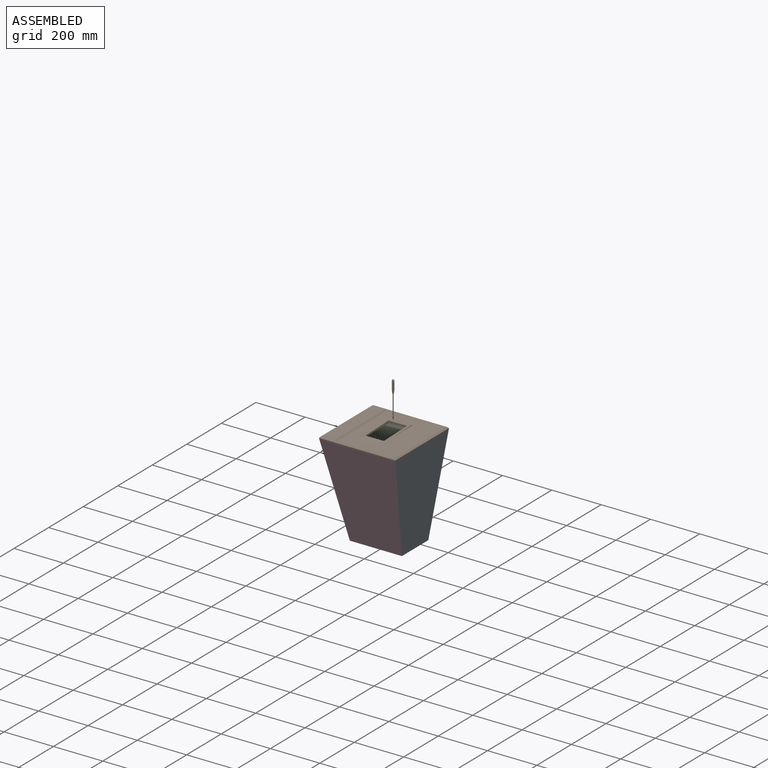
[diagram: assembled view]
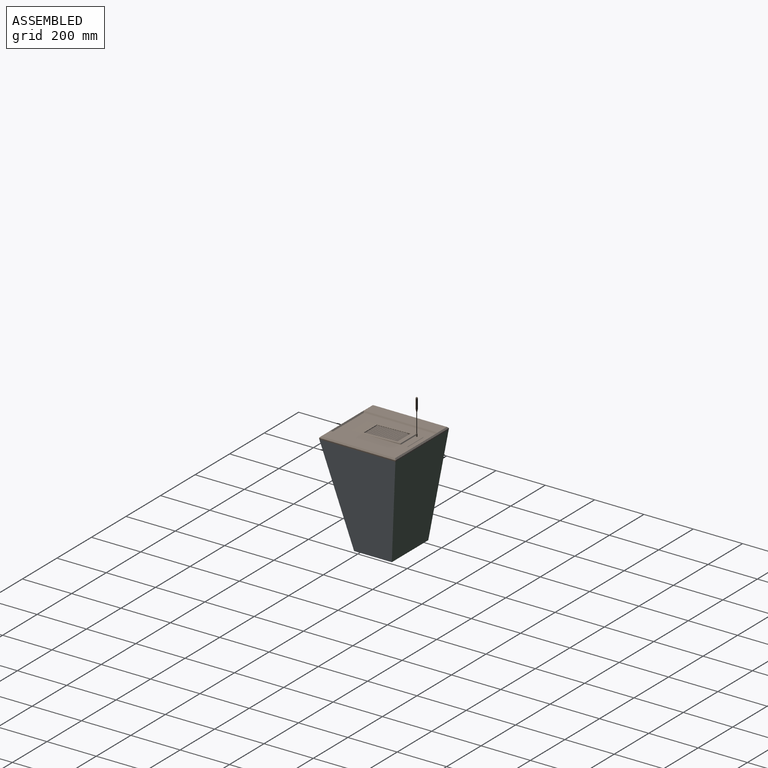
[diagram: assembled view, second angle]
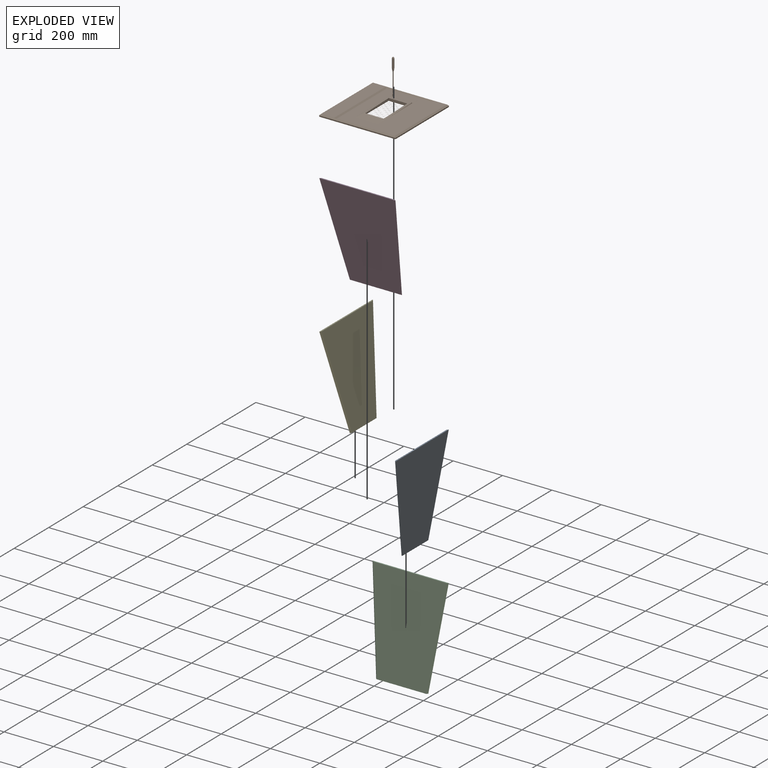
[diagram: exploded view]
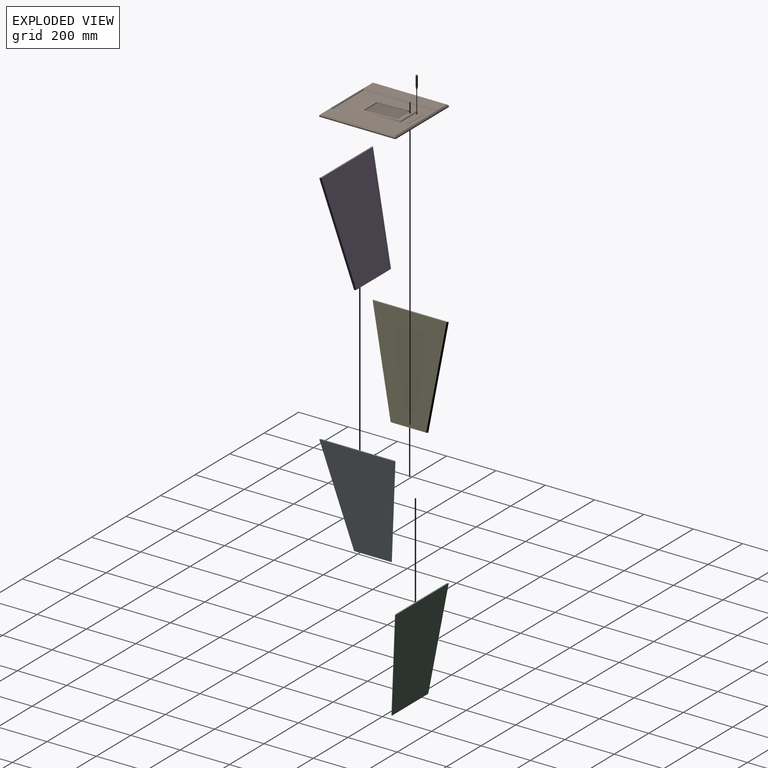
[diagram: exploded view, second angle]
ASSEMBLY  parts=5 mates=4
PART A: 6 faces, bbox 53.8x308.8x400 mm
  f0: plane 400x298.33mm, normal (-0.99,0,0.12), area 88794.6mm2, adj f2,f3,f4,f5
  f1: plane 400x308.78mm, normal (0.99,0,-0.12), area 93004.1mm2, adj f2,f3,f4,f5
  f2: plane 308.78x5.04mm, normal (0,0,1), area 1529mm2, adj f0,f1,f4,f5
  f3: plane 152.82x5.04mm, normal (0,0,-1), area 743.5mm2, adj f0,f1,f4,f5
  f4: plane 400x53.89mm, normal (-0.71,0.7,0), area 2870.2mm2, adj f0,f1,f2,f3
  f5: plane 400x112.52mm, normal (-0.72,-0.68,-0.09), area 2948.4mm2, adj f0,f1,f2,f3
PART B: 142 faces, bbox 310x310x150 mm
  f0: plane 20.08x6.63mm, normal (-1,0,0), area 58.6mm2, adj f30,f48,f94,f97
  f1: plane 14.5x6.37mm, normal (-1,0,0), area 57.1mm2, adj f30,f44,f48,f96
  f2: plane 20.08x6.63mm, normal (1,0,0), area 58.6mm2, adj f30,f48,f94,f97
  f3: plane 20.53x6.9mm, normal (-1,0,0), area 61mm2, adj f30,f48,f92,f95
  f4: plane 20.53x6.9mm, normal (1,0,0), area 61mm2, adj f30,f48,f92,f95
  f5: plane 20.99x7.16mm, normal (-1,0,0), area 63.4mm2, adj f30,f48,f90,f93
  f6: plane 20.99x7.16mm, normal (1,0,0), area 63.4mm2, adj f30,f48,f90,f93
  f7: plane 21.44x7.42mm, normal (-1,0,0), area 65.7mm2, adj f30,f48,f88,f91
  f8: plane 21.44x7.42mm, normal (1,0,0), area 65.7mm2, adj f30,f48,f88,f91
  f9: plane 21.9x7.68mm, normal (-1,0,0), area 68.1mm2, adj f30,f48,f86,f89
  f10: plane 21.9x7.68mm, normal (1,0,0), area 68.1mm2, adj f30,f48,f86,f89
  f11: plane 22.35x7.94mm, normal (-1,0,0), area 70.4mm2, adj f30,f48,f84,f87
  f12: plane 22.35x7.94mm, normal (1,0,0), area 70.4mm2, adj f30,f48,f84,f87
  f13: plane 22.8x8.21mm, normal (-1,0,0), area 72.8mm2, adj f30,f48,f82,f85
  f14: plane 22.8x8.21mm, normal (1,0,0), area 72.8mm2, adj f30,f48,f82,f85
  f15: plane 23.26x8.47mm, normal (-1,0,0), area 75.1mm2, adj f30,f48,f80,f83
  f16: plane 23.26x8.47mm, normal (1,0,0), area 75.1mm2, adj f30,f48,f80,f83
  f17: plane 23.71x8.73mm, normal (-1,0,0), area 77.5mm2, adj f30,f48,f78,f81
  f18: plane 23.71x8.73mm, normal (1,0,0), area 77.5mm2, adj f30,f48,f78,f81
  f19: plane 24.16x8.99mm, normal (-1,0,0), area 79.9mm2, adj f30,f48,f76,f79
  f20: plane 24.16x8.99mm, normal (1,0,0), area 79.9mm2, adj f30,f48,f76,f79
  f21: plane 24.62x9.25mm, normal (-1,0,0), area 82.2mm2, adj f30,f48,f74,f77
  f22: plane 24.62x9.25mm, normal (1,0,0), area 82.2mm2, adj f30,f48,f74,f77
  f23: plane 25.07x9.52mm, normal (-1,0,0), area 84.6mm2, adj f30,f48,f72,f75
  f24: plane 25.07x9.52mm, normal (1,0,0), area 84.6mm2, adj f30,f48,f72,f75
  f25: plane 16.73x10mm, normal (-1,0,0), area 84.6mm2, adj f30,f46,f48,f71,f73
  f26: plane 16.73x10mm, normal (1,0,0), area 84.6mm2, adj f30,f46,f48,f71,f73
  f27: plane 291.22x184.02mm, normal (0,0,1), area 31529.6mm2, adj f39,f40,f41,f42,f48,f49,f50,f51
  f28: plane 300x53mm, normal (0,0,1), area 15900mm2, adj f35,f36,f37,f40
  f29: plane 300x53mm, normal (0,0,1), area 15900mm2, adj f36,f37,f38,f41
  f30: plane 308.78x308.78mm, normal (0,0,-1), area 86142.9mm2, adj f0,f1,f2,f3,f4,f5,f6,f7
  f31: plane 310x5mm, normal (0.99,0,-0.12), area 1558.4mm2, adj f30,f33,f34,f38
  f32: plane 310x5mm, normal (-0.99,0,-0.12), area 1558.4mm2, adj f30,f33,f34,f35
  f33: plane 310x5mm, normal (0,0.99,-0.12), area 1558.4mm2, adj f30,f31,f32,f37
  f34: plane 310x5mm, normal (0,-0.99,-0.12), area 1558.4mm2, adj f30,f31,f32,f36
  f35: plane 310x5mm, normal (-0.71,0,0.71), area 2156.7mm2, adj f28,f32,f36,f37
  f36: plane 310x5mm, normal (0,-0.71,0.71), area 2074.5mm2, adj f28,f29,f34,f35,f38,f40,f41,f42
  f37: plane 310x5mm, normal (0,0.71,0.71), area 2074.5mm2, adj f28,f29,f33,f35,f38,f39,f40,f41
  f38: plane 310x5mm, normal (0.71,0,0.71), area 2156.7mm2, adj f29,f31,f36,f37
  f39: plane 193.4x4.7mm, normal (0,-0.71,0.71), area 1254.3mm2, adj f27,f37,f40,f41
  f40: plane 300.6x5mm, normal (0.71,0,0.71), area 2094.2mm2, adj f27,f28,f36,f37,f39,f42
  f41: plane 300.6x5mm, normal (-0.71,0,0.71), area 2094.2mm2, adj f27,f29,f36,f37,f39,f42
  f42: plane 193.4x4.7mm, normal (0,0.71,0.71), area 1254.3mm2, adj f27,f36,f40,f41
  f43: plane 90.73x24.79mm, normal (0,0,1), area 2229.8mm2, adj f54,f57,f60,f61,f63,f64,f98,f99
  f44: plane 75x6.28mm, normal (0,1,0), area 470.7mm2, adj f1,f30,f45,f48
  f45: plane 14.5x6.37mm, normal (1,0,0), area 57.1mm2, adj f30,f44,f48,f96
  f46: plane 75x10mm, normal (0,-1,0), area 750mm2, adj f25,f26,f30,f71
  f47: plane 85.71x16.08mm, normal (0,0,1), area 1370.6mm2, adj f62,f69,f70,f71
  f48: plane 182.17x95.77mm, normal (0,-0.03,1), area 6620.8mm2, adj f0,f1,f2,f3,f4,f5,f6,f7
  f49: cylinder r=3mm len=229.66mm, axis (0,1,0), area 631.4mm2, adj f27,f50,f55,f57,f63
  f50: bspline ~226.35x6.21mm, area 532.4mm2, adj f27,f48,f49,f65,f69
  f51: cylinder r=3mm len=229.66mm, axis (0,-1,0), area 631.4mm2, adj f27,f52,f58,f60,f64
  f52: bspline ~226.35x6.21mm, area 532.4mm2, adj f27,f48,f51,f66,f70
  f53: cylinder r=1mm len=96mm, axis (-1,0,0), area 97.8mm2, adj f27,f54,f55,f58
  f54: cylinder r=1mm len=90.71mm, axis (-1,0,0), area 95mm2, adj f43,f53,f56,f59
  f55: bspline ~2.65x1.73mm, area 1mm2, adj f49,f53,f56
  f56: sphere r=1mm, area 0.5mm2, adj f54,f55,f57
  f57: cylinder r=1mm len=24.22mm, axis (0,1,0), area 17.1mm2, adj f43,f49,f56,f63
  f58: bspline ~2.65x1.73mm, area 1mm2, adj f51,f53,f59
  f59: sphere r=1mm, area 0.5mm2, adj f54,f58,f60
  f60: cylinder r=1mm len=24.22mm, axis (0,-1,0), area 17.1mm2, adj f43,f51,f59,f64
  f61: cylinder r=3mm len=90mm, axis (-1,0,0), area 361.1mm2, adj f43,f62,f63,f64,f65,f66
  f62: cylinder r=2mm len=85.71mm, axis (-1,0,0), area 234.8mm2, adj f47,f61,f67,f68
  f63: bspline ~6.88x3.21mm, area 10.7mm2, adj f43,f49,f57,f61,f65
  f64: bspline ~6.88x3.21mm, area 10.7mm2, adj f43,f51,f60,f61,f66
  f65: bspline ~2.77x2.37mm, area 3mm2, adj f50,f61,f63,f67
  f66: bspline ~2.77x2.37mm, area 3mm2, adj f52,f61,f64,f68
  f67: sphere r=2mm, area 4.2mm2, adj f62,f65,f69
  f68: sphere r=2mm, area 3.7mm2, adj f62,f66,f70
  f69: bspline ~17.46x2.52mm, area 20.7mm2, adj f47,f50,f67,f71
  f70: bspline ~17.46x2.5mm, area 20.7mm2, adj f47,f52,f68,f71
  f71: cylinder r=2mm len=84.17mm, axis (-1,0,0), area 2.6mm2, adj f25,f26,f46,f47,f48,f69,f70
  f72: plane 75x16.48mm, normal (0,-0.5,-0.87), area 1427.2mm2, adj f23,f24,f30,f48
  f73: plane 75x16.53mm, normal (0,0.5,0.87), area 1431.2mm2, adj f25,f26,f30,f48
  f74: plane 75x16.03mm, normal (0,-0.5,-0.87), area 1387.9mm2, adj f21,f22,f30,f48
  f75: plane 75x16.07mm, normal (0,0.5,0.87), area 1391.9mm2, adj f23,f24,f30,f48
  f76: plane 75x15.57mm, normal (0,-0.5,-0.87), area 1348.6mm2, adj f19,f20,f30,f48
  f77: plane 75x15.62mm, normal (0,0.5,0.87), area 1352.6mm2, adj f21,f22,f30,f48
  f78: plane 75x15.12mm, normal (0,-0.5,-0.87), area 1309.3mm2, adj f17,f18,f30,f48
  f79: plane 75x15.16mm, normal (0,0.5,0.87), area 1313.3mm2, adj f19,f20,f30,f48
  f80: plane 75x14.67mm, normal (0,-0.5,-0.87), area 1270mm2, adj f15,f16,f30,f48
  f81: plane 75x14.71mm, normal (0,0.5,0.87), area 1274mm2, adj f17,f18,f30,f48
  f82: plane 75x14.21mm, normal (0,-0.5,-0.87), area 1230.7mm2, adj f13,f14,f30,f48
  f83: plane 75x14.26mm, normal (0,0.5,0.87), area 1234.7mm2, adj f15,f16,f30,f48
  f84: plane 75x13.76mm, normal (0,-0.5,-0.87), area 1191.4mm2, adj f11,f12,f30,f48
  f85: plane 75x13.8mm, normal (0,0.5,0.87), area 1195.4mm2, adj f13,f14,f30,f48
  f86: plane 75x13.3mm, normal (0,-0.5,-0.87), area 1152.2mm2, adj f9,f10,f30,f48
  f87: plane 75x13.35mm, normal (0,0.5,0.87), area 1156.1mm2, adj f11,f12,f30,f48
  f88: plane 75x12.85mm, normal (0,-0.5,-0.87), area 1112.9mm2, adj f7,f8,f30,f48
  f89: plane 75x12.9mm, normal (0,0.5,0.87), area 1116.8mm2, adj f9,f10,f30,f48
  f90: plane 75x12.4mm, normal (0,-0.5,-0.87), area 1073.6mm2, adj f5,f6,f30,f48
  f91: plane 75x12.44mm, normal (0,0.5,0.87), area 1077.5mm2, adj f7,f8,f30,f48
  f92: plane 75x11.94mm, normal (0,-0.5,-0.87), area 1034.3mm2, adj f3,f4,f30,f48
  f93: plane 75x11.99mm, normal (0,0.5,0.87), area 1038.2mm2, adj f5,f6,f30,f48
  f94: plane 75x11.49mm, normal (0,-0.5,-0.87), area 995mm2, adj f0,f2,f30,f48
  f95: plane 75x11.53mm, normal (0,0.5,0.87), area 998.9mm2, adj f3,f4,f30,f48
  f96: plane 75x11.04mm, normal (0,-0.5,-0.87), area 955.7mm2, adj f1,f30,f45,f48
  f97: plane 75x11.08mm, normal (0,0.5,0.87), area 959.6mm2, adj f0,f2,f30,f48
  f98: plane 10x1.5mm, normal (0,1,0), area 15mm2, adj f43,f102,f105,f118
  f99: plane 10.34x3mm, normal (-1,0,0), area 30.4mm2, adj f43,f102,f103,f115,f117,f119
  f100: plane 10x1.5mm, normal (0,-1,0), area 15mm2, adj f43,f103,f104,f111
  f101: plane 10.34x3mm, normal (1,0,0), area 30.4mm2, adj f43,f104,f105,f110,f112,f114
  f102: cylinder r=1mm len=10mm, axis (0,0,-1), area 15.7mm2, adj f43,f98,f99,f120
  f103: cylinder r=1mm len=10mm, axis (0,0,1), area 15.7mm2, adj f43,f99,f100,f113
  f104: cylinder r=1mm len=10mm, axis (0,0,-1), area 15.7mm2, adj f43,f100,f101,f109
  f105: cylinder r=1mm len=10mm, axis (0,0,1), area 15.7mm2, adj f43,f98,f101,f116
  f106: cylinder r=1.5mm len=76.01mm, axis (0,0,-1), area 706.7mm2, adj f123,f126,f127,f128,f129,f130,f132,f133
  f107: cylinder r=4mm len=34.17mm, axis (0,0,-1), area 858.9mm2, adj f124,f125
  f108: plane 4.56x4.56mm, normal (0,0,1), area 16.3mm2, adj f122
  f109: sphere r=1mm, area 0.7mm2, adj f104,f110,f111,f140
  f110: cylinder r=1mm len=0.37mm, axis (0,-1,0), area 0.1mm2, adj f101,f109,f112,f138
  f111: cylinder r=1mm len=1.5mm, axis (-1,0,0), area 0.9mm2, adj f100,f109,f113,f141
  f112: bspline ~3.06x1.11mm, area 0.9mm2, adj f101,f110,f114,f132,f134,f136
  f113: sphere r=1mm, area 0.7mm2, adj f103,f111,f115,f139
  f114: cylinder r=1mm len=0.37mm, axis (0,-1,0), area 0.1mm2, adj f101,f112,f116,f130
  f115: cylinder r=1mm len=0.37mm, axis (0,1,0), area 0.1mm2, adj f99,f113,f117,f137
  f116: sphere r=1mm, area 0.7mm2, adj f105,f114,f118,f128
  f117: bspline ~3.06x1.11mm, area 0.9mm2, adj f99,f115,f119,f131,f133,f135
  f118: cylinder r=1mm len=1.5mm, axis (1,0,0), area 0.9mm2, adj f98,f116,f120,f126
  f119: cylinder r=1mm len=0.37mm, axis (0,1,0), area 0.1mm2, adj f99,f117,f120,f129
  f120: sphere r=1mm, area 0.7mm2, adj f102,f118,f119,f127
  f121: cone r=2mm half-angle=18.4deg, axis (0,0,-1), area 17.3mm2, adj f122,f125
  f122: torus R=2.28mm, axis (0,0,1), area 22.2mm2, adj f108,f121
  f123: torus R=21.5mm, axis (0,0,-1), area 64.7mm2, adj f106,f124
  f124: revolved ~11.43x8mm, area 250.7mm2, adj f107,f123
  f125: revolved ~8x8mm, area 77.4mm2, adj f107,f121
  f126: bspline ~4.08x3.21mm, area 2.7mm2, adj f106,f118,f127,f128
  f127: bspline ~3.3x2.18mm, area 4.6mm2, adj f106,f120,f126,f129
  f128: bspline ~3.3x2.18mm, area 4.6mm2, adj f106,f116,f126,f130
  f129: bspline ~2.48x2.15mm, area 0.2mm2, adj f106,f119,f127,f131
  f130: bspline ~2.48x2.15mm, area 0.2mm2, adj f106,f114,f128,f132
  f131: bspline ~1.83x0.98mm, area 0.4mm2, adj f117,f129,f133
  f132: bspline ~1.88x1.04mm, area 0.7mm2, adj f106,f112,f130,f134
  f133: bspline ~1.67x1.29mm, area -7.9mm2, adj f106,f117,f131,f135
  f134: bspline ~1.7x1.51mm, area -0.2mm2, adj f106,f112,f132,f136
  f135: bspline ~1.88x1.04mm, area 0.7mm2, adj f106,f117,f133,f137
  f136: bspline ~1.83x0.98mm, area 0.4mm2, adj f112,f134,f138
  f137: bspline ~2.48x2.15mm, area 0.2mm2, adj f106,f115,f135,f139
  f138: bspline ~2.48x2.15mm, area 0.2mm2, adj f106,f110,f136,f140
  f139: bspline ~3.3x2.18mm, area 4.6mm2, adj f106,f113,f137,f141
  f140: bspline ~3.3x2.18mm, area 4.6mm2, adj f106,f109,f138,f141
  f141: bspline ~4.08x3.21mm, area 2.7mm2, adj f106,f111,f139,f140
PART C: 6 faces, bbox 308.8x53.8x400 mm
  f0: plane 400x298.56mm, normal (0,-0.99,0.12), area 100652mm2, adj f2,f3,f4,f5
  f1: plane 400x308.78mm, normal (0,0.99,-0.12), area 104770.5mm2, adj f2,f3,f4,f5
  f2: plane 308.78x5.04mm, normal (0,0,1), area 1529.6mm2, adj f0,f1,f4,f5
  f3: plane 211.22x5.04mm, normal (0,0,-1), area 1038.2mm2, adj f0,f1,f4,f5
  f4: plane 400x53.89mm, normal (0.7,-0.71,0), area 2870.2mm2, adj f0,f1,f2,f3
  f5: plane 400x53.89mm, normal (-0.7,-0.71,0), area 2870.2mm2, adj f0,f1,f2,f3
PART D: 6 faces, bbox 308.8x112.4x400 mm
  f0: plane 400x298.4mm, normal (0,0.97,0.26), area 103368.3mm2, adj f2,f3,f4,f5
  f1: plane 400x308.78mm, normal (0,-0.97,-0.26), area 107668.7mm2, adj f2,f3,f4,f5
  f2: plane 308.78x5.18mm, normal (0,0,1), area 1571.5mm2, adj f0,f1,f4,f5
  f3: plane 211.22x5.18mm, normal (0,0,-1), area 1066.5mm2, adj f0,f1,f4,f5
  f4: plane 400x112.36mm, normal (0.7,0.7,0.1), area 2948.4mm2, adj f0,f1,f2,f3
  f5: plane 400x112.36mm, normal (-0.7,0.7,0.1), area 2948.4mm2, adj f0,f1,f2,f3
PART E: 6 faces, bbox 53.7x308.8x400 mm
  f0: plane 152.82x4.96mm, normal (0.12,0,-0.99), area 738.6mm2, adj f1,f2,f4,f5
  f1: plane 399.39x298.33mm, normal (0.99,0,0.12), area 88707.7mm2, adj f0,f3,f4,f5
  f2: plane 400x308.78mm, normal (-0.99,0,-0.12), area 93004.1mm2, adj f0,f3,f4,f5
  f3: plane 308.78x5.04mm, normal (0,0,1), area 1529mm2, adj f1,f2,f4,f5
  f4: plane 400x112.35mm, normal (0.72,-0.68,-0.09), area 2946.2mm2, adj f0,f1,f2,f3
  f5: plane 400x53.82mm, normal (0.71,0.7,0), area 2868mm2, adj f0,f1,f2,f3
PLACE A rot(axis=(1,0,0),0deg) t=(89.65,729.38,551.69)mm
PLACE B rot(axis=(1,0,0),0deg) t=(89.65,729.38,551.69)mm
PLACE C t=(89.72,729.3,551.69)mm
PLACE D rot(axis=(1,0,0),0deg) t=(89.81,729.54,551.69)mm
PLACE E rot(axis=(-1,-0.05,0.04),0deg) t=(89.8,729.38,551.69)mm
MATE fastened B.f30 <-> A.f2  axis (0,0,1) through (244.04,883.77,686.69)mm
MATE fastened E.f3 <-> C.f2  axis (0,0,1) through (-59.56,878.66,686.69)mm
MATE fastened A.f2 <-> D.f2  axis (0,0,1) through (239,580.32,686.69)mm
MATE fastened C.f2 <-> A.f2  axis (0,0,1) through (239,878.66,686.69)mm
